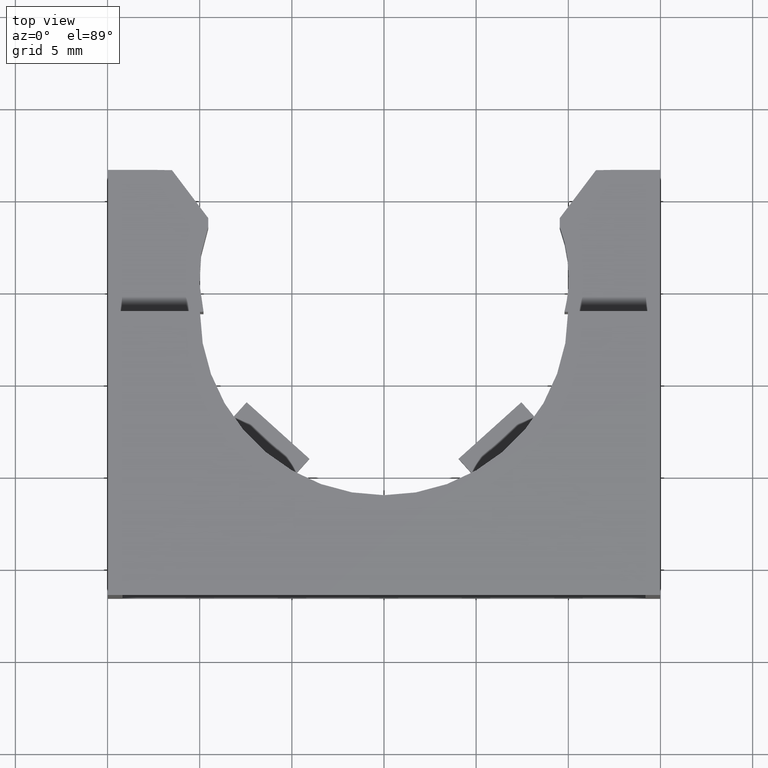
[diagram: clean part render]
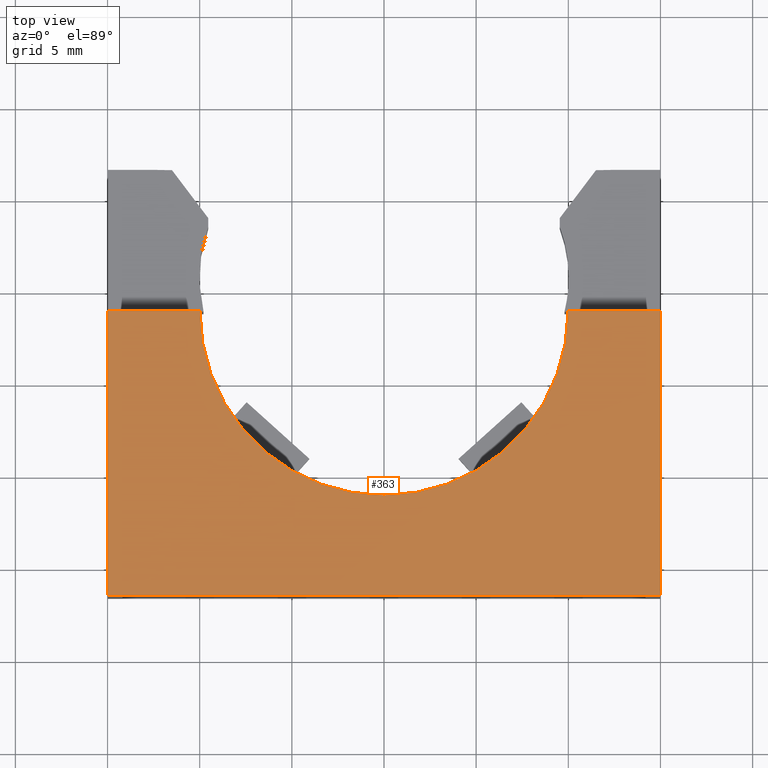
[diagram: same view with one face highlighted and labeled with its STEP entity id]
A machine part, top view. The second image highlights one B-rep face of the part: STEP entity #363.
In plain terms, the highlighted planar face has unit normal (-0, 0, 1).
Its self-contained STEP definition (entity closure, byte-faithful):
#48 = VERTEX_POINT ( 'NONE', #786 ) ;
#125 = VERTEX_POINT ( 'NONE', #1026 ) ;
#152 = ORIENTED_EDGE ( 'NONE', *, *, #243, .T. ) ;
#153 = ORIENTED_EDGE ( 'NONE', *, *, #232, .F. ) ;
#155 = ORIENTED_EDGE ( 'NONE', *, *, #464, .F. ) ;
#178 = ORIENTED_EDGE ( 'NONE', *, *, #377, .T. ) ;
#219 = EDGE_CURVE ( 'NONE', #220, #221, #903, .T. ) ;
#220 = VERTEX_POINT ( 'NONE', #899 ) ;
#221 = VERTEX_POINT ( 'NONE', #898 ) ;
#232 = EDGE_CURVE ( 'NONE', #221, #48, #882, .T. ) ;
#233 = ORIENTED_EDGE ( 'NONE', *, *, #219, .F. ) ;
#243 = EDGE_CURVE ( 'NONE', #375, #48, #1121, .T. ) ;
#246 = EDGE_CURVE ( 'NONE', #247, #125, #1086, .T. ) ;
#247 = VERTEX_POINT ( 'NONE', #1074 ) ;
#363 = ADVANCED_FACE ( 'NONE', ( #1230 ), #1229, .T. ) ;
#364 = EDGE_LOOP ( 'NONE', ( #155, #465, #178, #152, #153, #233 ) ) ;
#375 = VERTEX_POINT ( 'NONE', #1359 ) ;
#377 = EDGE_CURVE ( 'NONE', #125, #375, #1358, .T. ) ;
#464 = EDGE_CURVE ( 'NONE', #247, #220, #1522, .T. ) ;
#465 = ORIENTED_EDGE ( 'NONE', *, *, #246, .T. ) ;
#786 = CARTESIAN_POINT ( 'NONE',  ( 0.5900000000000004100, 0.1516666666666670000, 0.4699999999999999700 ) ) ;
#879 = DIRECTION ( 'NONE',  ( 1.000000000000000000, -0.0000000000000000000, -0.0000000000000000000 ) ) ;
#880 = VECTOR ( 'NONE', #879, 39.37007874015748100 ) ;
#881 = CARTESIAN_POINT ( 'NONE',  ( -0.5899999999999997500, 0.1516666666666670000, 0.4699999999999999700 ) ) ;
#882 = LINE ( 'NONE', #881, #880 ) ;
#898 = CARTESIAN_POINT ( 'NONE',  ( 0.3933333333333332600, 0.1516666666666670000, 0.4699999999999999700 ) ) ;
#899 = CARTESIAN_POINT ( 'NONE',  ( -0.3933333333333332600, 0.1516666666666670000, 0.4699999999999999700 ) ) ;
#900 = DIRECTION ( 'NONE',  ( 1.000000000000000000, 0.0000000000000000000, 0.0000000000000000000 ) ) ;
#901 = DIRECTION ( 'NONE',  ( 0.0000000000000000000, 0.0000000000000000000, 1.000000000000000000 ) ) ;
#902 = AXIS2_PLACEMENT_3D ( 'NONE', #909, #901, #900 ) ;
#903 = CIRCLE ( 'NONE', #902, 0.3933333333333332600 ) ;
#909 = CARTESIAN_POINT ( 'NONE',  ( 0.0000000000000000000, 0.1516666666666670600, 0.4699999999999999700 ) ) ;
#1026 = CARTESIAN_POINT ( 'NONE',  ( -0.5899999999999995200, -0.4549999999999996300, 0.4699999999999999700 ) ) ;
#1074 = CARTESIAN_POINT ( 'NONE',  ( -0.5899999999999997500, 0.1516666666666670000, 0.4699999999999999700 ) ) ;
#1075 = DIRECTION ( 'NONE',  ( 1.501015381134210600E-016, -1.000000000000000000, 0.0000000000000000000 ) ) ;
#1086 = LINE ( 'NONE', #1104, #1103 ) ;
#1088 = CARTESIAN_POINT ( 'NONE',  ( 0.5899999999999998600, 0.4550000000000001800, 0.4699999999999999700 ) ) ;
#1099 = VECTOR ( 'NONE', #1120, 39.37007874015748100 ) ;
#1103 = VECTOR ( 'NONE', #1075, 39.37007874015748100 ) ;
#1104 = CARTESIAN_POINT ( 'NONE',  ( -0.5899999999999997500, 0.4550000000000003500, 0.4699999999999999700 ) ) ;
#1120 = DIRECTION ( 'NONE',  ( -6.004061524536843300E-016, 1.000000000000000000, -0.0000000000000000000 ) ) ;
#1121 = LINE ( 'NONE', #1088, #1099 ) ;
#1222 = DIRECTION ( 'NONE',  ( 1.000000000000000000, 0.0000000000000000000, 0.0000000000000000000 ) ) ;
#1223 = DIRECTION ( 'NONE',  ( -0.0000000000000000000, 0.0000000000000000000, 1.000000000000000000 ) ) ;
#1224 = CARTESIAN_POINT ( 'NONE',  ( -0.5899999999999995200, -0.4549999999999996300, 0.4699999999999999700 ) ) ;
#1225 = AXIS2_PLACEMENT_3D ( 'NONE', #1224, #1223, #1222 ) ;
#1229 = PLANE ( 'NONE',  #1225 ) ;
#1230 = FACE_OUTER_BOUND ( 'NONE', #364, .T. ) ;
#1355 = DIRECTION ( 'NONE',  ( 1.000000000000000000, 0.0000000000000000000, 0.0000000000000000000 ) ) ;
#1356 = VECTOR ( 'NONE', #1355, 39.37007874015748100 ) ;
#1357 = CARTESIAN_POINT ( 'NONE',  ( -0.5899999999999995200, -0.4549999999999996300, 0.4699999999999999700 ) ) ;
#1358 = LINE ( 'NONE', #1357, #1356 ) ;
#1359 = CARTESIAN_POINT ( 'NONE',  ( 0.5900000000000004100, -0.4549999999999996300, 0.4699999999999999700 ) ) ;
#1520 = VECTOR ( 'NONE', #1612, 39.37007874015748100 ) ;
#1521 = CARTESIAN_POINT ( 'NONE',  ( -0.5899999999999997500, 0.1516666666666670000, 0.4699999999999999700 ) ) ;
#1522 = LINE ( 'NONE', #1521, #1520 ) ;
#1612 = DIRECTION ( 'NONE',  ( 1.000000000000000000, -0.0000000000000000000, -0.0000000000000000000 ) ) ;